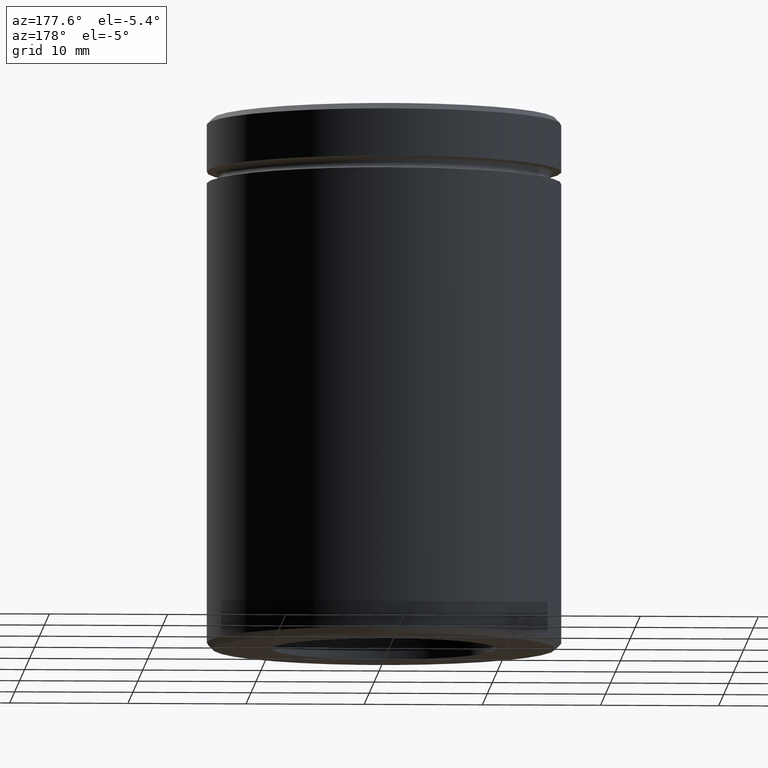
[diagram: clean part render]
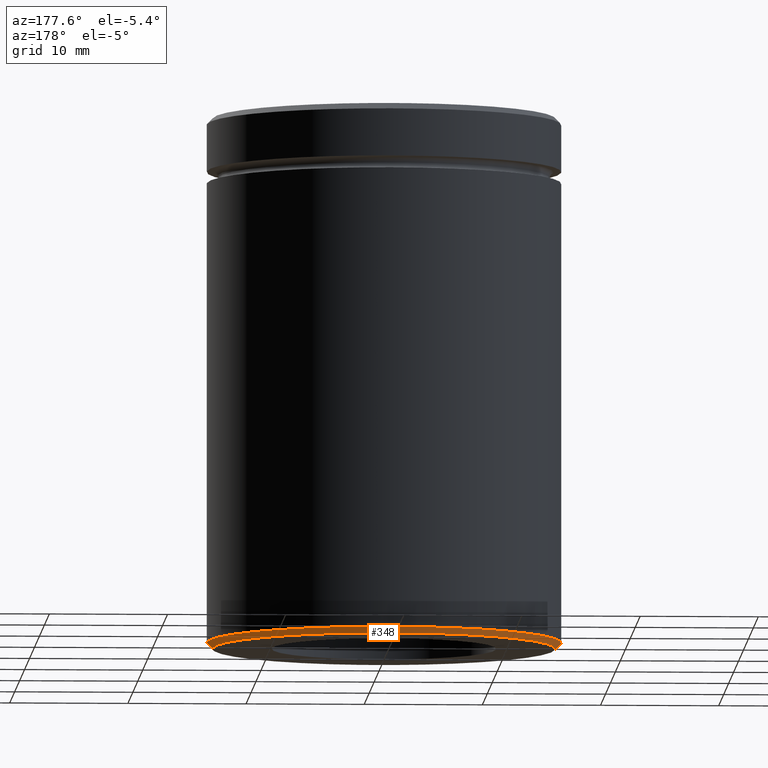
[diagram: same view with one face highlighted and labeled with its STEP entity id]
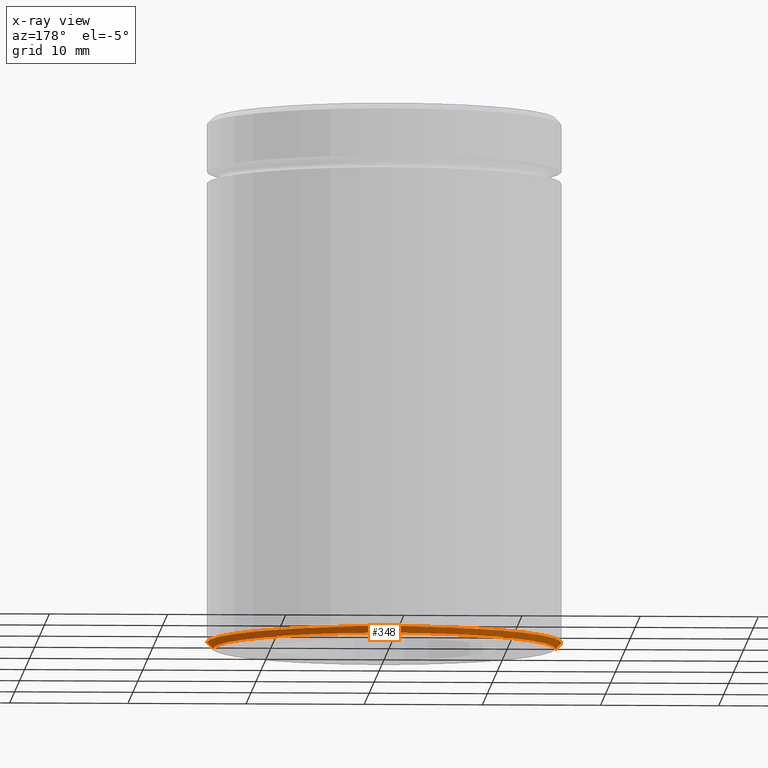
[diagram: x-ray of the same camera — body ghosted, the highlighted face saturated]
A machine part, auxiliary view. The second image highlights one B-rep face of the part: STEP entity #348.
The next image is the same camera in x-ray: the body ghosted, the highlighted face saturated — about 0% of this face is hidden behind the body in this view.
In plain terms, the highlighted conical surface has half-angle 45 deg.
Its self-contained STEP definition (entity closure, byte-faithful):
#35 = CONICAL_SURFACE ( 'NONE', #358, 15.00000000000000000, 0.7853981633974430610 ) ;
#47 = VERTEX_POINT ( 'NONE', #472 ) ;
#63 = CIRCLE ( 'NONE', #139, 14.49999999999999112 ) ;
#69 = VERTEX_POINT ( 'NONE', #215 ) ;
#72 = CARTESIAN_POINT ( 'NONE',  ( 0.000000000000000000, 0.000000000000000000, -44.49999999999998579 ) ) ;
#74 = CARTESIAN_POINT ( 'NONE',  ( 15.00000000000000000, 0.000000000000000000, -44.49999999999998579 ) ) ;
#120 = EDGE_CURVE ( 'NONE', #523, #47, #167, .T. ) ;
#125 = DIRECTION ( 'NONE',  ( -0.000000000000000000, -0.000000000000000000, 1.000000000000000000 ) ) ;
#139 = AXIS2_PLACEMENT_3D ( 'NONE', #276, #409, #314 ) ;
#147 = ORIENTED_EDGE ( 'NONE', *, *, #213, .F. ) ;
#162 = EDGE_CURVE ( 'NONE', #488, #47, #493, .T. ) ;
#167 = CIRCLE ( 'NONE', #556, 15.00000000000000000 ) ;
#210 = LINE ( 'NONE', #74, #359 ) ;
#213 = EDGE_CURVE ( 'NONE', #488, #69, #63, .T. ) ;
#215 = CARTESIAN_POINT ( 'NONE',  ( 14.49999999999999112, 0.000000000000000000, -45.00000000000000000 ) ) ;
#234 = EDGE_LOOP ( 'NONE', ( #147, #404, #351, #342 ) ) ;
#248 = DIRECTION ( 'NONE',  ( -0.000000000000000000, -0.000000000000000000, 1.000000000000000000 ) ) ;
#267 = CARTESIAN_POINT ( 'NONE',  ( 15.00000000000000000, 0.000000000000000000, -44.49999999999998579 ) ) ;
#276 = CARTESIAN_POINT ( 'NONE',  ( 0.000000000000000000, 0.000000000000000000, -45.00000000000000000 ) ) ;
#314 = DIRECTION ( 'NONE',  ( -1.000000000000000000, 0.000000000000000000, 0.000000000000000000 ) ) ;
#334 = FACE_OUTER_BOUND ( 'NONE', #234, .T. ) ;
#342 = ORIENTED_EDGE ( 'NONE', *, *, #500, .F. ) ;
#343 = CARTESIAN_POINT ( 'NONE',  ( -14.49999999999999112, 1.806354028742345013E-15, -45.00000000000000000 ) ) ;
#348 = ADVANCED_FACE ( 'NONE', ( #334 ), #35, .T. ) ;
#351 = ORIENTED_EDGE ( 'NONE', *, *, #120, .F. ) ;
#358 = AXIS2_PLACEMENT_3D ( 'NONE', #72, #248, #423 ) ;
#359 = VECTOR ( 'NONE', #430, 999.9999999999998863 ) ;
#404 = ORIENTED_EDGE ( 'NONE', *, *, #162, .T. ) ;
#409 = DIRECTION ( 'NONE',  ( 0.000000000000000000, 0.000000000000000000, -1.000000000000000000 ) ) ;
#423 = DIRECTION ( 'NONE',  ( 1.000000000000000000, 0.000000000000000000, 0.000000000000000000 ) ) ;
#427 = VECTOR ( 'NONE', #543, 999.9999999999998863 ) ;
#430 = DIRECTION ( 'NONE',  ( 0.7071067811865439090, 0.000000000000000000, 0.7071067811865512365 ) ) ;
#447 = CARTESIAN_POINT ( 'NONE',  ( -15.00000000000000000, 1.836970198721029589E-15, -44.49999999999998579 ) ) ;
#472 = CARTESIAN_POINT ( 'NONE',  ( -15.00000000000000000, 1.836970198721029589E-15, -44.49999999999998579 ) ) ;
#474 = DIRECTION ( 'NONE',  ( -1.000000000000000000, 0.000000000000000000, 0.000000000000000000 ) ) ;
#488 = VERTEX_POINT ( 'NONE', #343 ) ;
#493 = LINE ( 'NONE', #447, #427 ) ;
#500 = EDGE_CURVE ( 'NONE', #69, #523, #210, .T. ) ;
#516 = CARTESIAN_POINT ( 'NONE',  ( 0.000000000000000000, 0.000000000000000000, -44.49999999999998579 ) ) ;
#523 = VERTEX_POINT ( 'NONE', #267 ) ;
#543 = DIRECTION ( 'NONE',  ( -0.7071067811865439090, 8.659560562354888485E-17, 0.7071067811865512365 ) ) ;
#556 = AXIS2_PLACEMENT_3D ( 'NONE', #516, #125, #474 ) ;